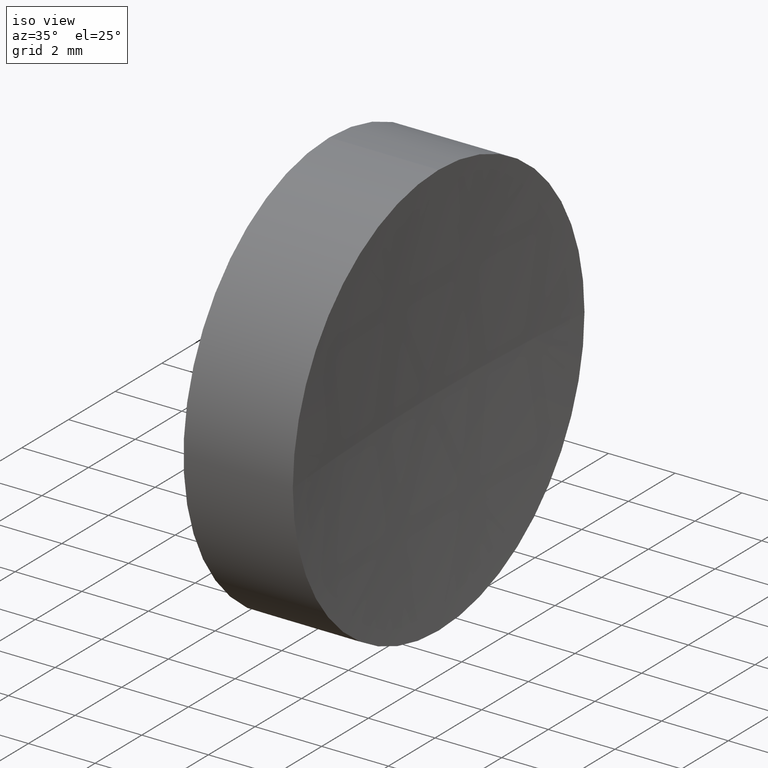
[diagram: clean part render]
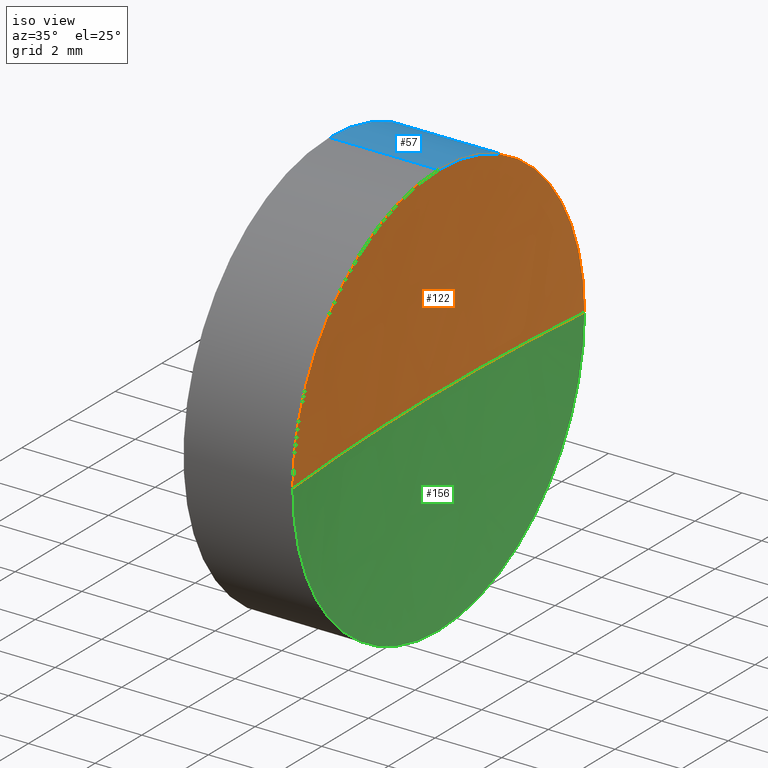
[diagram: same view with three faces highlighted in distinct colors, each labeled with its STEP entity id]
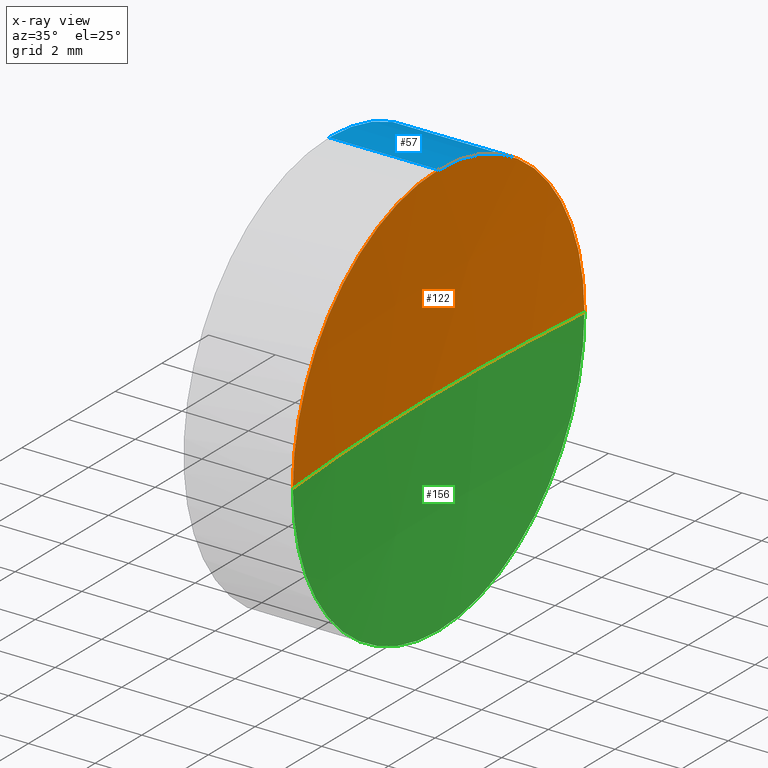
[diagram: x-ray of the same camera — body ghosted, the three highlighted faces saturated]
A machine part, iso view with three faces highlighted in distinct colors.
The next image is the same camera in x-ray (body ghosted, the three faces saturated) — at least one of them is partly hidden behind the body in this view.
Their STEP definitions:

[orange] entity #122 — the highlighted spherical surface has radius 70 mm.
#7 = VERTEX_POINT ( 'NONE', #59 ) ;
#8 = AXIS2_PLACEMENT_3D ( 'NONE', #148, #145, #49 ) ;
#9 = VERTEX_POINT ( 'NONE', #73 ) ;
#10 = CARTESIAN_POINT ( 'NONE',  ( 60.82590393042841700, 28.43901056168615700, -7.654042494670979300E-016 ) ) ;
#27 = DIRECTION ( 'NONE',  ( 0.0000000000000000000, 0.0000000000000000000, 1.000000000000000000 ) ) ;
#29 = AXIS2_PLACEMENT_3D ( 'NONE', #65, #177, #146 ) ;
#32 = EDGE_CURVE ( 'NONE', #85, #130, #165, .T. ) ;
#36 = CARTESIAN_POINT ( 'NONE',  ( 60.54632776735011400, 34.68901056168618200, 0.0000000000000000000 ) ) ;
#39 = CIRCLE ( 'NONE', #29, 6.250000000000005300 ) ;
#40 = DIRECTION ( 'NONE',  ( 0.0000000000000000000, 0.0000000000000000000, -1.000000000000000000 ) ) ;
#41 = AXIS2_PLACEMENT_3D ( 'NONE', #139, #135, #121 ) ;
#49 = DIRECTION ( 'NONE',  ( 0.0000000000000000000, 0.0000000000000000000, 1.000000000000000000 ) ) ;
#59 = CARTESIAN_POINT ( 'NONE',  ( 60.82590393042841000, 34.68901056168621700, 6.250000000000004400 ) ) ;
#65 = CARTESIAN_POINT ( 'NONE',  ( 60.82590393042841000, 34.68901056168621700, 0.0000000000000000000 ) ) ;
#69 = CIRCLE ( 'NONE', #161, 70.00000000000000000 ) ;
#73 = CARTESIAN_POINT ( 'NONE',  ( 60.82590393042841700, 40.93901056168623900, 0.0000000000000000000 ) ) ;
#75 = CARTESIAN_POINT ( 'NONE',  ( 130.5463277673501100, 34.68901056168617500, 0.0000000000000000000 ) ) ;
#79 = DIRECTION ( 'NONE',  ( 0.0000000000000000000, 1.000000000000000000, 0.0000000000000000000 ) ) ;
#82 = FACE_OUTER_BOUND ( 'NONE', #108, .T. ) ;
#85 = VERTEX_POINT ( 'NONE', #10 ) ;
#88 = ORIENTED_EDGE ( 'NONE', *, *, #126, .F. ) ;
#90 = SPHERICAL_SURFACE ( 'NONE', #170, 70.00000000000000000 ) ;
#94 = DIRECTION ( 'NONE',  ( 1.000000000000000000, 0.0000000000000000000, 0.0000000000000000000 ) ) ;
#95 = ORIENTED_EDGE ( 'NONE', *, *, #117, .F. ) ;
#108 = EDGE_LOOP ( 'NONE', ( #168, #123, #95, #88 ) ) ;
#117 = EDGE_CURVE ( 'NONE', #9, #130, #69, .T. ) ;
#121 = DIRECTION ( 'NONE',  ( 0.0000000000000000000, 1.000000000000000000, 1.224646799147353200E-016 ) ) ;
#122 = ADVANCED_FACE ( 'NONE', ( #82 ), #90, .F. ) ;
#123 = ORIENTED_EDGE ( 'NONE', *, *, #32, .T. ) ;
#126 = EDGE_CURVE ( 'NONE', #7, #9, #134, .T. ) ;
#130 = VERTEX_POINT ( 'NONE', #36 ) ;
#134 = CIRCLE ( 'NONE', #8, 6.250000000000005300 ) ;
#135 = DIRECTION ( 'NONE',  ( 0.0000000000000000000, 1.224646799147353200E-016, -1.000000000000000000 ) ) ;
#139 = CARTESIAN_POINT ( 'NONE',  ( 130.5463277673501100, 34.68901056168617500, 0.0000000000000000000 ) ) ;
#145 = DIRECTION ( 'NONE',  ( -1.000000000000000000, -0.0000000000000000000, -0.0000000000000000000 ) ) ;
#146 = DIRECTION ( 'NONE',  ( 0.0000000000000000000, 0.0000000000000000000, 1.000000000000000000 ) ) ;
#148 = CARTESIAN_POINT ( 'NONE',  ( 60.82590393042841000, 34.68901056168621700, 0.0000000000000000000 ) ) ;
#159 = CARTESIAN_POINT ( 'NONE',  ( 130.5463277673501100, 34.68901056168617500, 0.0000000000000000000 ) ) ;
#161 = AXIS2_PLACEMENT_3D ( 'NONE', #75, #27, #94 ) ;
#164 = EDGE_CURVE ( 'NONE', #85, #7, #39, .T. ) ;
#165 = CIRCLE ( 'NONE', #41, 70.00000000000000000 ) ;
#168 = ORIENTED_EDGE ( 'NONE', *, *, #164, .F. ) ;
#170 = AXIS2_PLACEMENT_3D ( 'NONE', #159, #40, #79 ) ;
#177 = DIRECTION ( 'NONE',  ( -1.000000000000000000, -0.0000000000000000000, -0.0000000000000000000 ) ) ;

[blue] entity #57 — the highlighted cylindrical surface (partial cylindrical patch) has radius 6.25 mm, axis along (-1, -0, -0).
#5 = LINE ( 'NONE', #25, #62 ) ;
#7 = VERTEX_POINT ( 'NONE', #59 ) ;
#8 = AXIS2_PLACEMENT_3D ( 'NONE', #148, #145, #49 ) ;
#9 = VERTEX_POINT ( 'NONE', #73 ) ;
#11 = CYLINDRICAL_SURFACE ( 'NONE', #96, 6.250000000000001800 ) ;
#12 = ORIENTED_EDGE ( 'NONE', *, *, #84, .F. ) ;
#15 = EDGE_LOOP ( 'NONE', ( #157, #102, #154, #12, #116 ) ) ;
#16 = CARTESIAN_POINT ( 'NONE',  ( 60.82590393042841000, 34.68901056168621700, -6.250000000000004400 ) ) ;
#23 = DIRECTION ( 'NONE',  ( -1.000000000000000000, -0.0000000000000000000, -0.0000000000000000000 ) ) ;
#25 = CARTESIAN_POINT ( 'NONE',  ( 54.49257150108255100, 34.68901056168621700, 6.250000000000001800 ) ) ;
#26 = LINE ( 'NONE', #107, #171 ) ;
#34 = CARTESIAN_POINT ( 'NONE',  ( 57.54632776745975800, 34.68901056168621700, -6.249999999999998200 ) ) ;
#43 = CIRCLE ( 'NONE', #71, 6.250000000000005300 ) ;
#46 = VERTEX_POINT ( 'NONE', #34 ) ;
#47 = DIRECTION ( 'NONE',  ( -1.000000000000000000, -0.0000000000000000000, -0.0000000000000000000 ) ) ;
#49 = DIRECTION ( 'NONE',  ( 0.0000000000000000000, 0.0000000000000000000, 1.000000000000000000 ) ) ;
#55 = EDGE_CURVE ( 'NONE', #182, #46, #26, .T. ) ;
#56 = AXIS2_PLACEMENT_3D ( 'NONE', #110, #78, #66 ) ;
#57 = ADVANCED_FACE ( 'NONE', ( #83 ), #11, .T. ) ;
#59 = CARTESIAN_POINT ( 'NONE',  ( 60.82590393042841000, 34.68901056168621700, 6.250000000000004400 ) ) ;
#60 = DIRECTION ( 'NONE',  ( -1.000000000000000000, -0.0000000000000000000, -0.0000000000000000000 ) ) ;
#62 = VECTOR ( 'NONE', #23, 1000.000000000000000 ) ;
#66 = DIRECTION ( 'NONE',  ( 0.0000000000000000000, 0.0000000000000000000, 1.000000000000000000 ) ) ;
#71 = AXIS2_PLACEMENT_3D ( 'NONE', #143, #47, #179 ) ;
#73 = CARTESIAN_POINT ( 'NONE',  ( 60.82590393042841700, 40.93901056168623900, 0.0000000000000000000 ) ) ;
#78 = DIRECTION ( 'NONE',  ( -1.000000000000000000, -0.0000000000000000000, -0.0000000000000000000 ) ) ;
#83 = FACE_OUTER_BOUND ( 'NONE', #15, .T. ) ;
#84 = EDGE_CURVE ( 'NONE', #7, #162, #5, .T. ) ;
#92 = DIRECTION ( 'NONE',  ( 0.0000000000000000000, 0.0000000000000000000, 1.000000000000000000 ) ) ;
#96 = AXIS2_PLACEMENT_3D ( 'NONE', #172, #174, #92 ) ;
#102 = ORIENTED_EDGE ( 'NONE', *, *, #55, .T. ) ;
#104 = EDGE_CURVE ( 'NONE', #9, #182, #43, .T. ) ;
#107 = CARTESIAN_POINT ( 'NONE',  ( 54.49257150108255100, 34.68901056168621700, -6.250000000000001800 ) ) ;
#110 = CARTESIAN_POINT ( 'NONE',  ( 57.54632776745975800, 34.68901056168621700, 0.0000000000000000000 ) ) ;
#115 = EDGE_CURVE ( 'NONE', #162, #46, #149, .T. ) ;
#116 = ORIENTED_EDGE ( 'NONE', *, *, #126, .T. ) ;
#126 = EDGE_CURVE ( 'NONE', #7, #9, #134, .T. ) ;
#134 = CIRCLE ( 'NONE', #8, 6.250000000000005300 ) ;
#143 = CARTESIAN_POINT ( 'NONE',  ( 60.82590393042841000, 34.68901056168621700, 0.0000000000000000000 ) ) ;
#145 = DIRECTION ( 'NONE',  ( -1.000000000000000000, -0.0000000000000000000, -0.0000000000000000000 ) ) ;
#148 = CARTESIAN_POINT ( 'NONE',  ( 60.82590393042841000, 34.68901056168621700, 0.0000000000000000000 ) ) ;
#149 = CIRCLE ( 'NONE', #56, 6.249999999999998200 ) ;
#154 = ORIENTED_EDGE ( 'NONE', *, *, #115, .F. ) ;
#157 = ORIENTED_EDGE ( 'NONE', *, *, #104, .T. ) ;
#160 = CARTESIAN_POINT ( 'NONE',  ( 57.54632776745975800, 34.68901056168621700, 6.249999999999998200 ) ) ;
#162 = VERTEX_POINT ( 'NONE', #160 ) ;
#171 = VECTOR ( 'NONE', #60, 1000.000000000000000 ) ;
#172 = CARTESIAN_POINT ( 'NONE',  ( 54.49257150108255100, 34.68901056168621700, 0.0000000000000000000 ) ) ;
#174 = DIRECTION ( 'NONE',  ( -1.000000000000000000, -0.0000000000000000000, -0.0000000000000000000 ) ) ;
#179 = DIRECTION ( 'NONE',  ( 0.0000000000000000000, 0.0000000000000000000, 1.000000000000000000 ) ) ;
#182 = VERTEX_POINT ( 'NONE', #16 ) ;

[green] entity #156 — the highlighted spherical surface has radius 70 mm.
#3 = DIRECTION ( 'NONE',  ( 0.0000000000000000000, 1.000000000000000000, 0.0000000000000000000 ) ) ;
#9 = VERTEX_POINT ( 'NONE', #73 ) ;
#10 = CARTESIAN_POINT ( 'NONE',  ( 60.82590393042841700, 28.43901056168615700, -7.654042494670979300E-016 ) ) ;
#16 = CARTESIAN_POINT ( 'NONE',  ( 60.82590393042841000, 34.68901056168621700, -6.250000000000004400 ) ) ;
#19 = ORIENTED_EDGE ( 'NONE', *, *, #117, .T. ) ;
#21 = DIRECTION ( 'NONE',  ( 0.0000000000000000000, 0.0000000000000000000, 1.000000000000000000 ) ) ;
#27 = DIRECTION ( 'NONE',  ( 0.0000000000000000000, 0.0000000000000000000, 1.000000000000000000 ) ) ;
#32 = EDGE_CURVE ( 'NONE', #85, #130, #165, .T. ) ;
#36 = CARTESIAN_POINT ( 'NONE',  ( 60.54632776735011400, 34.68901056168618200, 0.0000000000000000000 ) ) ;
#41 = AXIS2_PLACEMENT_3D ( 'NONE', #139, #135, #121 ) ;
#42 = AXIS2_PLACEMENT_3D ( 'NONE', #76, #54, #3 ) ;
#43 = CIRCLE ( 'NONE', #71, 6.250000000000005300 ) ;
#47 = DIRECTION ( 'NONE',  ( -1.000000000000000000, -0.0000000000000000000, -0.0000000000000000000 ) ) ;
#54 = DIRECTION ( 'NONE',  ( 0.0000000000000000000, 0.0000000000000000000, -1.000000000000000000 ) ) ;
#64 = AXIS2_PLACEMENT_3D ( 'NONE', #185, #124, #21 ) ;
#69 = CIRCLE ( 'NONE', #161, 70.00000000000000000 ) ;
#70 = EDGE_CURVE ( 'NONE', #182, #85, #152, .T. ) ;
#71 = AXIS2_PLACEMENT_3D ( 'NONE', #143, #47, #179 ) ;
#73 = CARTESIAN_POINT ( 'NONE',  ( 60.82590393042841700, 40.93901056168623900, 0.0000000000000000000 ) ) ;
#75 = CARTESIAN_POINT ( 'NONE',  ( 130.5463277673501100, 34.68901056168617500, 0.0000000000000000000 ) ) ;
#76 = CARTESIAN_POINT ( 'NONE',  ( 130.5463277673501100, 34.68901056168617500, 0.0000000000000000000 ) ) ;
#85 = VERTEX_POINT ( 'NONE', #10 ) ;
#86 = FACE_OUTER_BOUND ( 'NONE', #99, .T. ) ;
#94 = DIRECTION ( 'NONE',  ( 1.000000000000000000, 0.0000000000000000000, 0.0000000000000000000 ) ) ;
#99 = EDGE_LOOP ( 'NONE', ( #180, #173, #120, #19 ) ) ;
#104 = EDGE_CURVE ( 'NONE', #9, #182, #43, .T. ) ;
#117 = EDGE_CURVE ( 'NONE', #9, #130, #69, .T. ) ;
#120 = ORIENTED_EDGE ( 'NONE', *, *, #104, .F. ) ;
#121 = DIRECTION ( 'NONE',  ( 0.0000000000000000000, 1.000000000000000000, 1.224646799147353200E-016 ) ) ;
#124 = DIRECTION ( 'NONE',  ( -1.000000000000000000, -0.0000000000000000000, -0.0000000000000000000 ) ) ;
#130 = VERTEX_POINT ( 'NONE', #36 ) ;
#135 = DIRECTION ( 'NONE',  ( 0.0000000000000000000, 1.224646799147353200E-016, -1.000000000000000000 ) ) ;
#139 = CARTESIAN_POINT ( 'NONE',  ( 130.5463277673501100, 34.68901056168617500, 0.0000000000000000000 ) ) ;
#141 = SPHERICAL_SURFACE ( 'NONE', #42, 70.00000000000000000 ) ;
#143 = CARTESIAN_POINT ( 'NONE',  ( 60.82590393042841000, 34.68901056168621700, 0.0000000000000000000 ) ) ;
#152 = CIRCLE ( 'NONE', #64, 6.250000000000005300 ) ;
#156 = ADVANCED_FACE ( 'NONE', ( #86 ), #141, .F. ) ;
#161 = AXIS2_PLACEMENT_3D ( 'NONE', #75, #27, #94 ) ;
#165 = CIRCLE ( 'NONE', #41, 70.00000000000000000 ) ;
#173 = ORIENTED_EDGE ( 'NONE', *, *, #70, .F. ) ;
#179 = DIRECTION ( 'NONE',  ( 0.0000000000000000000, 0.0000000000000000000, 1.000000000000000000 ) ) ;
#180 = ORIENTED_EDGE ( 'NONE', *, *, #32, .F. ) ;
#182 = VERTEX_POINT ( 'NONE', #16 ) ;
#185 = CARTESIAN_POINT ( 'NONE',  ( 60.82590393042841000, 34.68901056168621700, 0.0000000000000000000 ) ) ;